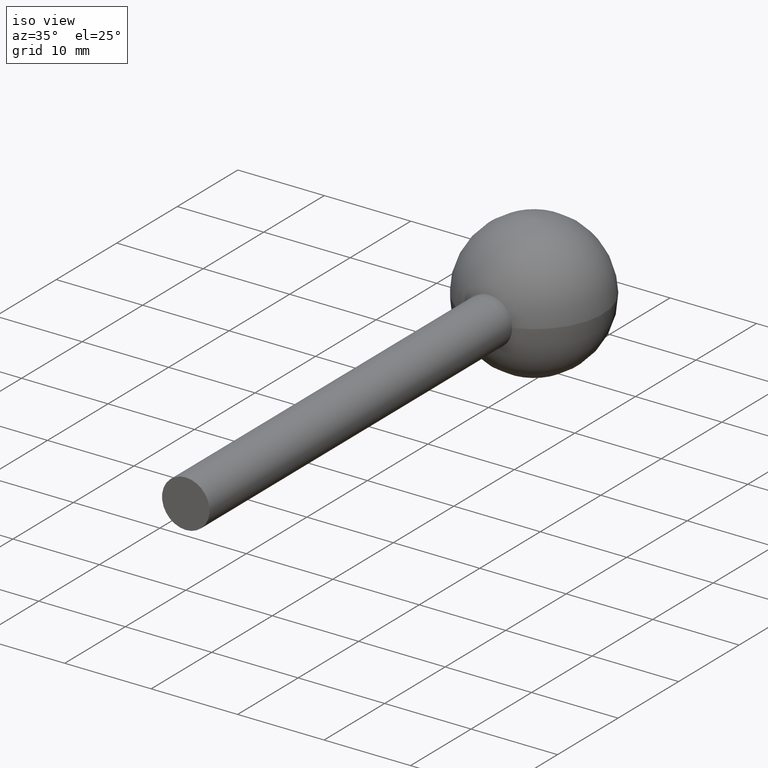
[diagram: clean part render]
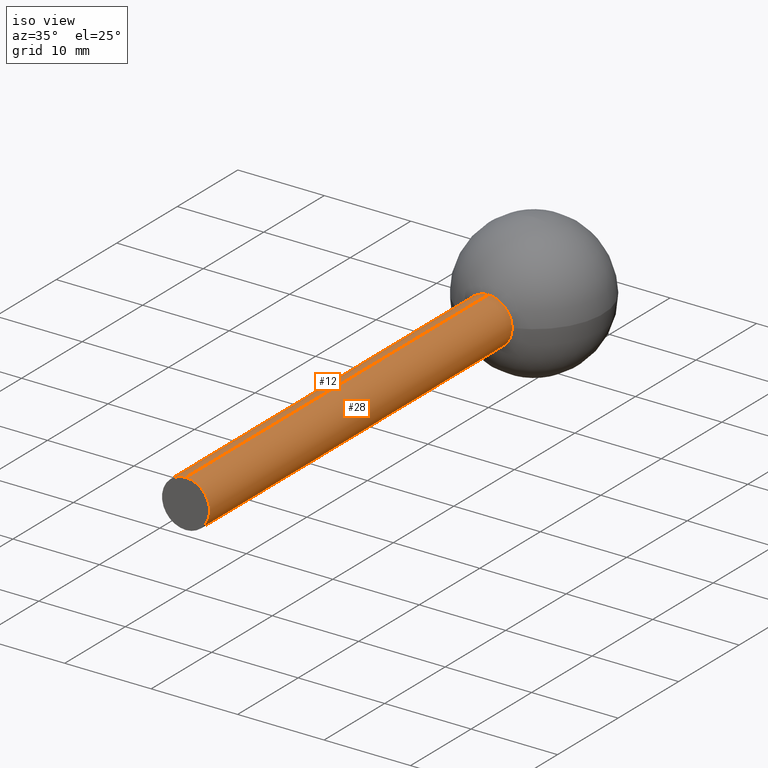
[diagram: same view with one multi-face feature highlighted, each face labeled with its STEP entity id]
A machine part, iso view. The highlighted faces form ONE feature: a constant-radius fillet chain: 2 tangent blend faces with common blend radius 2.75 mm. The faces share edges in the B-rep.
Their STEP definitions:
[1] entity #12 (Cylinder):
#2 = EDGE_CURVE ( 'NONE', #22, #171, #21, .T. ) ;
#12 = ADVANCED_FACE ( 'NONE', ( #137 ), #84, .T. ) ;
#14 = EDGE_CURVE ( 'NONE', #164, #171, #85, .T. ) ;
#19 = EDGE_CURVE ( 'NONE', #145, #122, #160, .T. ) ;
#21 = LINE ( 'NONE', #186, #174 ) ;
#22 = VERTEX_POINT ( 'NONE', #219 ) ;
#25 = ORIENTED_EDGE ( 'NONE', *, *, #48, .F. ) ;
#33 = AXIS2_PLACEMENT_3D ( 'NONE', #143, #192, #181 ) ;
#39 = ORIENTED_EDGE ( 'NONE', *, *, #177, .T. ) ;
#46 = AXIS2_PLACEMENT_3D ( 'NONE', #220, #196, #74 ) ;
#48 = EDGE_CURVE ( 'NONE', #145, #164, #78, .T. ) ;
#70 = DIRECTION ( 'NONE',  ( -0.0000000000000000000, -1.000000000000000000, -0.0000000000000000000 ) ) ;
#74 = DIRECTION ( 'NONE',  ( 0.0000000000000000000, 0.0000000000000000000, -1.000000000000000000 ) ) ;
#78 = LINE ( 'NONE', #201, #82 ) ;
#80 = DIRECTION ( 'NONE',  ( -0.0000000000000000000, -1.000000000000000000, -0.0000000000000000000 ) ) ;
#82 = VECTOR ( 'NONE', #210, 1000.000000000000000 ) ;
#84 = CYLINDRICAL_SURFACE ( 'NONE', #33, 2.750000000000001300 ) ;
#85 = CIRCLE ( 'NONE', #46, 2.750000000000000000 ) ;
#86 = AXIS2_PLACEMENT_3D ( 'NONE', #105, #70, #182 ) ;
#97 = DIRECTION ( 'NONE',  ( 0.0000000000000000000, 0.0000000000000000000, -1.000000000000000000 ) ) ;
#98 = DIRECTION ( 'NONE',  ( -0.0000000000000000000, -1.000000000000000000, -0.0000000000000000000 ) ) ;
#99 = CARTESIAN_POINT ( 'NONE',  ( 0.0000000000000000000, 50.00000000000000000, 0.0000000000000000000 ) ) ;
#105 = CARTESIAN_POINT ( 'NONE',  ( 0.0000000000000000000, 50.00000000000000000, 0.0000000000000000000 ) ) ;
#122 = VERTEX_POINT ( 'NONE', #199 ) ;
#131 = ORIENTED_EDGE ( 'NONE', *, *, #14, .F. ) ;
#137 = FACE_OUTER_BOUND ( 'NONE', #151, .T. ) ;
#143 = CARTESIAN_POINT ( 'NONE',  ( 0.0000000000000000000, 0.0000000000000000000, 0.0000000000000000000 ) ) ;
#145 = VERTEX_POINT ( 'NONE', #189 ) ;
#147 = CARTESIAN_POINT ( 'NONE',  ( 0.0000000000000000000, -3.367778697655221000E-016, -2.750000000000000000 ) ) ;
#151 = EDGE_LOOP ( 'NONE', ( #25, #209, #39, #216, #131 ) ) ;
#160 = CIRCLE ( 'NONE', #86, 2.750000000000002700 ) ;
#164 = VERTEX_POINT ( 'NONE', #178 ) ;
#171 = VERTEX_POINT ( 'NONE', #147 ) ;
#174 = VECTOR ( 'NONE', #80, 1000.000000000000000 ) ;
#177 = EDGE_CURVE ( 'NONE', #122, #22, #190, .T. ) ;
#178 = CARTESIAN_POINT ( 'NONE',  ( 3.367778697655221500E-016, -3.367778697655221000E-016, 2.750000000000000000 ) ) ;
#181 = DIRECTION ( 'NONE',  ( 0.0000000000000000000, 0.0000000000000000000, -1.000000000000000000 ) ) ;
#182 = DIRECTION ( 'NONE',  ( 0.0000000000000000000, 0.0000000000000000000, -1.000000000000000000 ) ) ;
#186 = CARTESIAN_POINT ( 'NONE',  ( 0.0000000000000000000, 0.0000000000000000000, -2.750000000000001300 ) ) ;
#187 = AXIS2_PLACEMENT_3D ( 'NONE', #99, #98, #97 ) ;
#189 = CARTESIAN_POINT ( 'NONE',  ( 3.367778697655224000E-016, 50.00000000000000000, 2.750000000000002700 ) ) ;
#190 = CIRCLE ( 'NONE', #187, 2.750000000000002700 ) ;
#192 = DIRECTION ( 'NONE',  ( -0.0000000000000000000, -1.000000000000000000, -0.0000000000000000000 ) ) ;
#196 = DIRECTION ( 'NONE',  ( -0.0000000000000000000, -1.000000000000000000, -0.0000000000000000000 ) ) ;
#199 = CARTESIAN_POINT ( 'NONE',  ( -2.750000000000000000, 50.00000000000000000, 0.0000000000000000000 ) ) ;
#201 = CARTESIAN_POINT ( 'NONE',  ( 3.367778697655222500E-016, 0.0000000000000000000, 2.750000000000001300 ) ) ;
#209 = ORIENTED_EDGE ( 'NONE', *, *, #19, .T. ) ;
#210 = DIRECTION ( 'NONE',  ( -0.0000000000000000000, -1.000000000000000000, -0.0000000000000000000 ) ) ;
#216 = ORIENTED_EDGE ( 'NONE', *, *, #2, .T. ) ;
#219 = CARTESIAN_POINT ( 'NONE',  ( 0.0000000000000000000, 50.00000000000000000, -2.750000000000002700 ) ) ;
#220 = CARTESIAN_POINT ( 'NONE',  ( 0.0000000000000000000, -3.367778697655221000E-016, 0.0000000000000000000 ) ) ;
[2] entity #28 (Cylinder):
#2 = EDGE_CURVE ( 'NONE', #22, #171, #21, .T. ) ;
#4 = ORIENTED_EDGE ( 'NONE', *, *, #162, .T. ) ;
#10 = ORIENTED_EDGE ( 'NONE', *, *, #58, .T. ) ;
#20 = AXIS2_PLACEMENT_3D ( 'NONE', #214, #100, #71 ) ;
#21 = LINE ( 'NONE', #186, #174 ) ;
#22 = VERTEX_POINT ( 'NONE', #219 ) ;
#23 = AXIS2_PLACEMENT_3D ( 'NONE', #188, #184, #180 ) ;
#28 = ADVANCED_FACE ( 'NONE', ( #79 ), #211, .T. ) ;
#29 = VERTEX_POINT ( 'NONE', #218 ) ;
#45 = ORIENTED_EDGE ( 'NONE', *, *, #158, .F. ) ;
#48 = EDGE_CURVE ( 'NONE', #145, #164, #78, .T. ) ;
#58 = EDGE_CURVE ( 'NONE', #22, #29, #193, .T. ) ;
#71 = DIRECTION ( 'NONE',  ( 0.0000000000000000000, 0.0000000000000000000, -1.000000000000000000 ) ) ;
#78 = LINE ( 'NONE', #201, #82 ) ;
#79 = FACE_OUTER_BOUND ( 'NONE', #197, .T. ) ;
#80 = DIRECTION ( 'NONE',  ( -0.0000000000000000000, -1.000000000000000000, -0.0000000000000000000 ) ) ;
#82 = VECTOR ( 'NONE', #210, 1000.000000000000000 ) ;
#100 = DIRECTION ( 'NONE',  ( -0.0000000000000000000, -1.000000000000000000, -0.0000000000000000000 ) ) ;
#107 = DIRECTION ( 'NONE',  ( 0.0000000000000000000, 0.0000000000000000000, -1.000000000000000000 ) ) ;
#120 = DIRECTION ( 'NONE',  ( -0.0000000000000000000, -1.000000000000000000, -0.0000000000000000000 ) ) ;
#126 = CARTESIAN_POINT ( 'NONE',  ( 0.0000000000000000000, 50.00000000000000000, 0.0000000000000000000 ) ) ;
#138 = DIRECTION ( 'NONE',  ( 0.0000000000000000000, 0.0000000000000000000, -1.000000000000000000 ) ) ;
#140 = DIRECTION ( 'NONE',  ( -0.0000000000000000000, -1.000000000000000000, -0.0000000000000000000 ) ) ;
#142 = CARTESIAN_POINT ( 'NONE',  ( 0.0000000000000000000, -3.367778697655221000E-016, 0.0000000000000000000 ) ) ;
#145 = VERTEX_POINT ( 'NONE', #189 ) ;
#147 = CARTESIAN_POINT ( 'NONE',  ( 0.0000000000000000000, -3.367778697655221000E-016, -2.750000000000000000 ) ) ;
#153 = ORIENTED_EDGE ( 'NONE', *, *, #2, .F. ) ;
#158 = EDGE_CURVE ( 'NONE', #171, #164, #198, .T. ) ;
#162 = EDGE_CURVE ( 'NONE', #29, #145, #194, .T. ) ;
#164 = VERTEX_POINT ( 'NONE', #178 ) ;
#171 = VERTEX_POINT ( 'NONE', #147 ) ;
#174 = VECTOR ( 'NONE', #80, 1000.000000000000000 ) ;
#178 = CARTESIAN_POINT ( 'NONE',  ( 3.367778697655221500E-016, -3.367778697655221000E-016, 2.750000000000000000 ) ) ;
#180 = DIRECTION ( 'NONE',  ( 0.0000000000000000000, 0.0000000000000000000, -1.000000000000000000 ) ) ;
#184 = DIRECTION ( 'NONE',  ( -0.0000000000000000000, -1.000000000000000000, -0.0000000000000000000 ) ) ;
#186 = CARTESIAN_POINT ( 'NONE',  ( 0.0000000000000000000, 0.0000000000000000000, -2.750000000000001300 ) ) ;
#188 = CARTESIAN_POINT ( 'NONE',  ( 0.0000000000000000000, 50.00000000000000000, 0.0000000000000000000 ) ) ;
#189 = CARTESIAN_POINT ( 'NONE',  ( 3.367778697655224000E-016, 50.00000000000000000, 2.750000000000002700 ) ) ;
#193 = CIRCLE ( 'NONE', #23, 2.750000000000002700 ) ;
#194 = CIRCLE ( 'NONE', #208, 2.750000000000002700 ) ;
#197 = EDGE_LOOP ( 'NONE', ( #4, #212, #45, #153, #10 ) ) ;
#198 = CIRCLE ( 'NONE', #217, 2.750000000000000000 ) ;
#201 = CARTESIAN_POINT ( 'NONE',  ( 3.367778697655222500E-016, 0.0000000000000000000, 2.750000000000001300 ) ) ;
#208 = AXIS2_PLACEMENT_3D ( 'NONE', #126, #120, #107 ) ;
#210 = DIRECTION ( 'NONE',  ( -0.0000000000000000000, -1.000000000000000000, -0.0000000000000000000 ) ) ;
#211 = CYLINDRICAL_SURFACE ( 'NONE', #20, 2.750000000000001300 ) ;
#212 = ORIENTED_EDGE ( 'NONE', *, *, #48, .T. ) ;
#214 = CARTESIAN_POINT ( 'NONE',  ( 0.0000000000000000000, 0.0000000000000000000, 0.0000000000000000000 ) ) ;
#217 = AXIS2_PLACEMENT_3D ( 'NONE', #142, #140, #138 ) ;
#218 = CARTESIAN_POINT ( 'NONE',  ( 2.750000000000000000, 50.00000000000000000, -3.367778697655221500E-016 ) ) ;
#219 = CARTESIAN_POINT ( 'NONE',  ( 0.0000000000000000000, 50.00000000000000000, -2.750000000000002700 ) ) ;